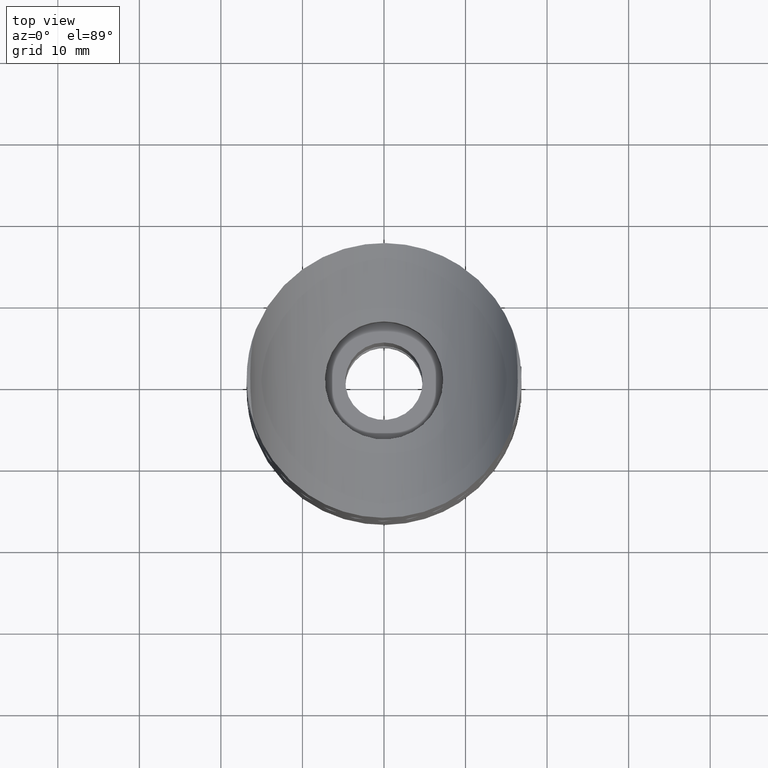
[diagram: clean part render]
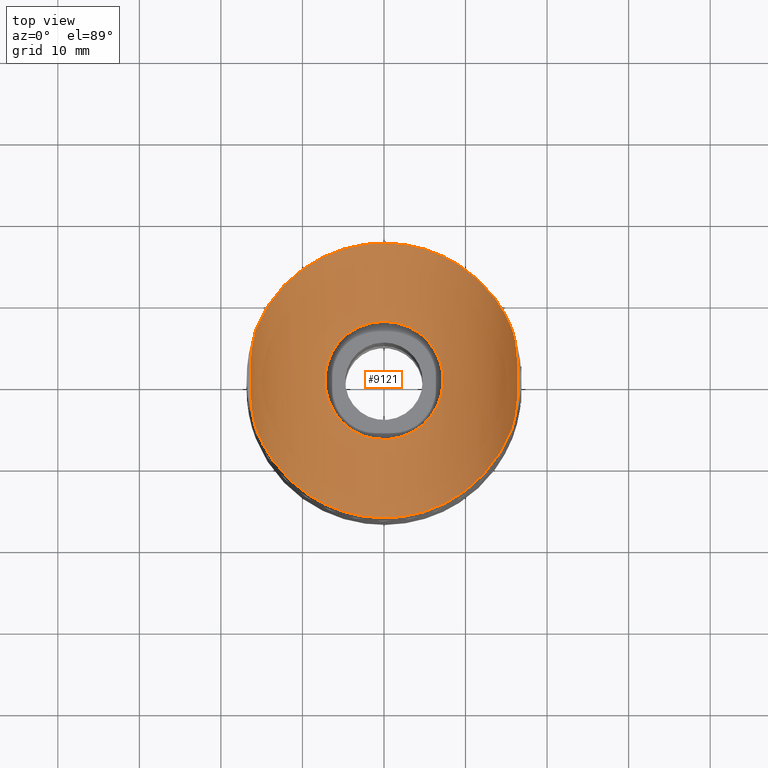
[diagram: same view with one face highlighted and labeled with its STEP entity id]
A machine part, top view. The second image highlights one B-rep face of the part: STEP entity #9121.
In plain terms, the highlighted cylindrical surface (partial cylindrical patch) has radius 16.85 mm, axis along (0, 1, 0).
Its self-contained STEP definition (entity closure, byte-faithful):
#15 = ORIENTED_EDGE ( 'NONE', *, *, #8905, .T. ) ;
#23 = CARTESIAN_POINT ( 'NONE',  ( -16.40141839170570393, -0.5535371552584260613, 37.98779848676359450 ) ) ;
#74 = CARTESIAN_POINT ( 'NONE',  ( 16.13624633560177557, 4.241177961827769849, 36.99627346810926554 ) ) ;
#178 = CARTESIAN_POINT ( 'NONE',  ( 15.96868809060993399, 5.184551421884949107, 36.46444688106459608 ) ) ;
#200 = ORIENTED_EDGE ( 'NONE', *, *, #5441, .T. ) ;
#221 = CARTESIAN_POINT ( 'NONE',  ( 16.20866886502654935, -3.744772510198584925, 37.24138836566785926 ) ) ;
#270 = CARTESIAN_POINT ( 'NONE',  ( 16.31087275655609403, 2.714783330825576879, 37.61726458673263807 ) ) ;
#299 = CARTESIAN_POINT ( 'NONE',  ( -6.597024996629188287, -3.016154368538872976, 26.34478903538650840 ) ) ;
#354 = CARTESIAN_POINT ( 'NONE',  ( 6.505347094623084914, 3.235870692881704258, 26.30512370645544706 ) ) ;
#372 = CARTESIAN_POINT ( 'NONE',  ( 5.748691130923704762, -4.423815701176767590, 26.01017554612027638 ) ) ;
#402 = CARTESIAN_POINT ( 'NONE',  ( -3.236524067846648034, 6.504761240615189344, 25.30781549788806828 ) ) ;
#446 = CARTESIAN_POINT ( 'NONE',  ( -0.4731811929526718030, -7.238568785239263725, 25.00492898829840627 ) ) ;
#490 = CARTESIAN_POINT ( 'NONE',  ( -9.163197432298227696, 23.14767939880414360, 18.70232060119585071 ) ) ;
#491 = CARTESIAN_POINT ( 'NONE',  ( 7.237684138109774956, 0.4863419437967108627, 26.63358971400849740 ) ) ;
#638 = VERTEX_POINT ( 'NONE', #2166 ) ;
#795 = EDGE_LOOP ( 'NONE', ( #7839, #200, #8832, #2468 ) ) ;
#917 = CARTESIAN_POINT ( 'NONE',  ( -15.73081969849494222, -6.038527271897003779, 35.81147272810301985 ) ) ;
#1027 = CARTESIAN_POINT ( 'NONE',  ( 3.235647069445152013, -6.505055102152138780, 25.30769353588152271 ) ) ;
#1136 = CARTESIAN_POINT ( 'NONE',  ( -16.38123230396242747, -1.377419223775963708, 37.90282915749347836 ) ) ;
#1240 = CARTESIAN_POINT ( 'NONE',  ( -16.13624633560179333, -4.241177961827717446, 36.99627346810930817 ) ) ;
#1423 = CARTESIAN_POINT ( 'NONE',  ( -1.206220008662642007, 7.152956514648704633, 25.04158154498464484 ) ) ;
#1463 = CARTESIAN_POINT ( 'NONE',  ( -7.201599023381042741, -0.9656620689726390649, 26.61613527486002795 ) ) ;
#1482 = CARTESIAN_POINT ( 'NONE',  ( 7.061034692050171202, -1.661628961916945757, 26.55075274866319290 ) ) ;
#1522 = CARTESIAN_POINT ( 'NONE',  ( -0.9536567279642784722, -7.191058151983810376, 25.02529029445553732 ) ) ;
#1575 = CARTESIAN_POINT ( 'NONE',  ( -3.647523231461745397, -6.283216967721338975, 25.39461716155379634 ) ) ;
#1622 = CARTESIAN_POINT ( 'NONE',  ( 3.227097637635072847, 6.509461846557853093, 25.30596129321795118 ) ) ;
#1804 = CARTESIAN_POINT ( 'NONE',  ( 15.73081969849499018, -6.038527271896840354, 35.81147272810315485 ) ) ;
#1997 = EDGE_CURVE ( 'NONE', #11243, #13985, #13587, .T. ) ;
#2122 = CARTESIAN_POINT ( 'NONE',  ( -15.85567318992861452, 5.621287671075532622, 36.14499305653968975 ) ) ;
#2166 = CARTESIAN_POINT ( 'NONE',  ( 7.250000000000000000, 0.000000000000000000, 26.63947732653476663 ) ) ;
#2316 = CARTESIAN_POINT ( 'NONE',  ( -16.38987835016731864, -1.104764067015558737, 37.93911602635104430 ) ) ;
#2322 = CARTESIAN_POINT ( 'NONE',  ( 16.23403106632356696, 3.489175320682800230, 37.33466334284318577 ) ) ;
#2426 = FACE_OUTER_BOUND ( 'NONE', #795, .T. ) ;
#2468 = ORIENTED_EDGE ( 'NONE', *, *, #12260, .T. ) ;
#2543 = CARTESIAN_POINT ( 'NONE',  ( 2.351928688558236225, 6.874276990241155794, 25.15905013672770352 ) ) ;
#2591 = CARTESIAN_POINT ( 'NONE',  ( -7.250343904083244695, 0.2281810962328670311, 26.63964124603318950 ) ) ;
#2645 = CARTESIAN_POINT ( 'NONE',  ( -6.154477086918445750, 3.839248637186977398, 26.16355981611150483 ) ) ;
#2686 = CARTESIAN_POINT ( 'NONE',  ( -7.249288605716508904, -0.4883933574990114712, 26.63913824537101860 ) ) ;
#2730 = CARTESIAN_POINT ( 'NONE',  ( -4.798364704034504769, 5.455251783317862646, 25.69388360925591996 ) ) ;
#2783 = VERTEX_POINT ( 'NONE', #10731 ) ;
#3270 = CARTESIAN_POINT ( 'NONE',  ( -16.01274988465693028, 4.945870757382262006, 36.60264272420874931 ) ) ;
#3364 = CARTESIAN_POINT ( 'NONE',  ( -16.39325967086365665, 1.096040323332309052, 37.95215670458372159 ) ) ;
#3410 = CARTESIAN_POINT ( 'NONE',  ( -16.14277968366689109, 4.237859510404688557, 37.01111241315620504 ) ) ;
#3419 = CARTESIAN_POINT ( 'NONE',  ( 15.85567318992863228, -5.621287671075488213, 36.14499305653972527 ) ) ;
#3448 = B_SPLINE_CURVE_WITH_KNOTS ( 'NONE', 3,
 ( #5857, #3708, #9175, #1482, #11350, #4796, #11407, #13612, #6964, #4745, #372, #12459, #13562, #8064, #9687, #14206, #1027, #3872, #9388, #13934, #11210, #9378, #13827, #13498, #446, #1522, #8152, #12385, #9206, #9161, #1575, #12445, #5794, #10432, #6951, #8002, #8049, #8100, #299, #4834, #9250, #1463, #2686, #2591, #3641, #11333, #12534, #11281, #11391, #4729, #10283, #12580, #2645, #10334, #5844, #4689, #6901, #2730, #13544, #7092, #402, #3743, #5902, #1423, #7042, #9099, #6998, #5988, #3787, #5941, #2543, #1622, #9301, #10393, #11481, #10239, #3695, #4884, #13694, #4780, #354, #13655, #12485, #13597, #11440, #491, #8189, #11719 ),
 .UNSPECIFIED., .T., .F.,
 ( 4, 2, 2, 2, 2, 2, 2, 2, 2, 2, 2, 2, 2, 2, 2, 2, 2, 2, 2, 2, 2, 2, 2, 2, 2, 2, 2, 2, 2, 2, 2, 2, 2, 2, 2, 2, 2, 2, 2, 2, 2, 2, 2, 4 ),
 ( 0.000000000000000000, 0.001433644577313991945, 0.002150466865970988677, 0.002867289154627985191, 0.004300933731941979955, 0.005017756020598978205, 0.005734578309255978189, 0.007168222886569977290, 0.008601867463883977258, 0.009318689752540977242, 0.01003551204119797549, 0.01146915661851197546, 0.01218597890716897718, 0.01290280119582597716, 0.01433644577313997887, 0.01577009035045398230, 0.01720373492776798574, 0.01863737950508198571, 0.01935420179373898569, 0.02007102408239598915, 0.02150466865970999258, 0.02293831323702399255, 0.02365513552568099254, 0.02437195781433799599, 0.02580560239165199596, 0.02652242468030899594, 0.02723924696896599940, 0.02795606925762299938, 0.02867289154627999936, 0.03010653612359400627, 0.03154018070090801318, 0.03297382527822202009, 0.03369064756687902007, 0.03440746985553602005, 0.03584111443285002002, 0.03727475901016401999, 0.03870840358747802690, 0.04014204816479202687, 0.04085887045344903379, 0.04157569274210603377, 0.04300933731942004068, 0.04444298189673404759, 0.04515980418539104757, 0.04587662647404804755 ),
 .UNSPECIFIED. ) ;
#3463 = CARTESIAN_POINT ( 'NONE',  ( -15.86311505572658298, -5.625520625989302026, 36.15611212738907199 ) ) ;
#3519 = CARTESIAN_POINT ( 'NONE',  ( 15.96386898178366742, -5.177536327584455478, 36.45515397224382781 ) ) ;
#3641 = CARTESIAN_POINT ( 'NONE',  ( -7.238922090878896931, 0.4674521546085577128, 26.63417985456497306 ) ) ;
#3695 = CARTESIAN_POINT ( 'NONE',  ( 5.451857114951206285, 4.784850722138375367, 25.90557452647156822 ) ) ;
#3708 = CARTESIAN_POINT ( 'NONE',  ( 7.249999999999997335, -0.4853044915254276503, 26.63947732653477019 ) ) ;
#3743 = CARTESIAN_POINT ( 'NONE',  ( -2.362376490325218015, 6.870675669620782244, 25.16053825129096566 ) ) ;
#3787 = CARTESIAN_POINT ( 'NONE',  ( 0.9488585482520990322, 7.203876826102688646, 25.02001323252149589 ) ) ;
#3872 = CARTESIAN_POINT ( 'NONE',  ( 2.582786677651925267, -6.778449412495077375, 25.19766032188119098 ) ) ;
#3875 = CARTESIAN_POINT ( 'NONE',  ( -15.73081969849497774, 6.038527271896884763, 35.81147272810311932 ) ) ;
#4469 = CARTESIAN_POINT ( 'NONE',  ( 15.86311505572657410, 5.625520625989348211, 36.15611212738902935 ) ) ;
#4555 = CARTESIAN_POINT ( 'NONE',  ( -15.96868809060994110, -5.184551421884894928, 36.46444688106462451 ) ) ;
#4689 = CARTESIAN_POINT ( 'NONE',  ( -5.456315597336280021, 4.779773658194085506, 25.90710032310409616 ) ) ;
#4729 = CARTESIAN_POINT ( 'NONE',  ( -6.602263208937939609, 3.004854884108334456, 26.34701551272308961 ) ) ;
#4745 = CARTESIAN_POINT ( 'NONE',  ( 5.890442141657528552, -4.233289882853304320, 26.06250676569495539 ) ) ;
#4780 = CARTESIAN_POINT ( 'NONE',  ( 6.280362781856493548, 3.652164045557528382, 26.21166793982108345 ) ) ;
#4796 = CARTESIAN_POINT ( 'NONE',  ( 6.862414628211291223, -2.350987257090765947, 26.46053341069578124 ) ) ;
#4834 = CARTESIAN_POINT ( 'NONE',  ( -6.869696446962260339, -2.364629918321242474, 26.46270023103867430 ) ) ;
#4884 = CARTESIAN_POINT ( 'NONE',  ( 5.749804130066613617, 4.422363044895918804, 26.01058075090455191 ) ) ;
#5207 = CARTESIAN_POINT ( 'NONE',  ( -9.163197432298050060, -23.14767939880428571, 18.70232060119571571 ) ) ;
#5311 = CYLINDRICAL_SURFACE ( 'NONE', #5709, 16.85000000000000497 ) ;
#5441 = EDGE_CURVE ( 'NONE', #10939, #13985, #10349, .T. ) ;
#5519 = CARTESIAN_POINT ( 'NONE',  ( -16.31062374466074516, 2.717289760328442494, 37.61634901860210078 ) ) ;
#5579 = CARTESIAN_POINT ( 'NONE',  ( 16.34671092180303020, -2.177982997195887283, 37.76133432144520441 ) ) ;
#5608 = CARTESIAN_POINT ( 'NONE',  ( 15.73081969849499018, -6.038527271896840354, 35.81147272810315485 ) ) ;
#5611 = CARTESIAN_POINT ( 'NONE',  ( -16.40426520276194466, -0.2756780710698192305, 37.99998920032988536 ) ) ;
#5709 = AXIS2_PLACEMENT_3D ( 'NONE', #14032, #8480, #9774 ) ;
#5794 = CARTESIAN_POINT ( 'NONE',  ( -4.796089520777946369, -5.457012219152879595, 25.69324742014727292 ) ) ;
#5844 = CARTESIAN_POINT ( 'NONE',  ( -5.754116119224438108, 4.416759423806409401, 26.01214731436788341 ) ) ;
#5857 = CARTESIAN_POINT ( 'NONE',  ( 7.249999999999999112, -1.897353801849632760E-16, 26.63947732653477019 ) ) ;
#5902 = CARTESIAN_POINT ( 'NONE',  ( -1.909735483059623373, 7.010308468516696756, 25.10195530643837358 ) ) ;
#5941 = CARTESIAN_POINT ( 'NONE',  ( 1.896853463475621115, 7.014137210544926226, 25.10035122528852369 ) ) ;
#5988 = CARTESIAN_POINT ( 'NONE',  ( 0.4712565622534022336, 7.250465984549373744, 24.99979950227583103 ) ) ;
#6574 = CARTESIAN_POINT ( 'NONE',  ( -16.20421094295869224, -3.745248186039250360, 37.22824116101894987 ) ) ;
#6615 = CARTESIAN_POINT ( 'NONE',  ( -16.34617337435092210, -2.186723760485111523, 37.75917687489127417 ) ) ;
#6675 = CARTESIAN_POINT ( 'NONE',  ( 16.20421094295868869, 3.745248186039304983, 37.22824116101892145 ) ) ;
#6720 = CARTESIAN_POINT ( 'NONE',  ( -16.20866886502653870, 3.744772510198639104, 37.24138836566783795 ) ) ;
#6901 = CARTESIAN_POINT ( 'NONE',  ( -5.297207865788581493, 4.955550704987970789, 25.85335772755182049 ) ) ;
#6951 = CARTESIAN_POINT ( 'NONE',  ( -5.754487810619588473, -4.435106019776057451, 26.01057218544510974 ) ) ;
#6964 = CARTESIAN_POINT ( 'NONE',  ( 6.284216989755231353, -3.646001131596604772, 26.21318057226976705 ) ) ;
#6998 = CARTESIAN_POINT ( 'NONE',  ( -0.2463010454514845682, 7.249761770579300268, 25.00010250223306940 ) ) ;
#7042 = CARTESIAN_POINT ( 'NONE',  ( -0.9659986221736308609, 7.189405491579162089, 25.02599706087776354 ) ) ;
#7092 = CARTESIAN_POINT ( 'NONE',  ( -3.659509500026476125, 6.276188967057912294, 25.39730413224381422 ) ) ;
#7133 = CARTESIAN_POINT ( 'NONE',  ( 15.73081969849492801, 6.038527271897049076, 35.81147272810297721 ) ) ;
#7640 = CARTESIAN_POINT ( 'NONE',  ( 15.73081969849499018, -6.038527271896840354, 35.81147272810315485 ) ) ;
#7720 = CARTESIAN_POINT ( 'NONE',  ( -16.31087275655609758, -2.714783330825518703, 37.61726458673266649 ) ) ;
#7777 = CARTESIAN_POINT ( 'NONE',  ( -15.73081969849494222, -6.038527271897003779, 35.81147272810301985 ) ) ;
#7785 = CARTESIAN_POINT ( 'NONE',  ( 16.14277968366690530, -4.237859510404637042, 37.01111241315622635 ) ) ;
#7817 = CARTESIAN_POINT ( 'NONE',  ( -16.40427280154960243, 0.5502477355468575748, 38.00002157761478827 ) ) ;
#7839 = ORIENTED_EDGE ( 'NONE', *, *, #10618, .F. ) ;
#7865 = CARTESIAN_POINT ( 'NONE',  ( -16.23403106632357762, -3.489175320682742942, 37.33466334284320709 ) ) ;
#7931 = CARTESIAN_POINT ( 'NONE',  ( 16.39325967086365665, -1.096040323332247102, 37.95215670458372159 ) ) ;
#8002 = CARTESIAN_POINT ( 'NONE',  ( -6.148551095359934493, -3.848800887296454309, 26.16122709414422687 ) ) ;
#8049 = CARTESIAN_POINT ( 'NONE',  ( -6.271749419596712727, -3.644646323103855945, 26.21023352558152553 ) ) ;
#8064 = CARTESIAN_POINT ( 'NONE',  ( 4.798716551207491854, -5.454592940747858165, 25.69404991863388688 ) ) ;
#8100 = CARTESIAN_POINT ( 'NONE',  ( -6.495672709179130422, -3.228703092257263041, 26.30190133129517349 ) ) ;
#8152 = CARTESIAN_POINT ( 'NONE',  ( -1.190670664119219735, -7.155537656130248614, 25.04048140047463278 ) ) ;
#8189 = CARTESIAN_POINT ( 'NONE',  ( 7.250000000000000000, 0.2426522457627152685, 26.63947732653477019 ) ) ;
#8252 = FACE_BOUND ( 'NONE', #11303, .T. ) ;
#8480 = DIRECTION ( 'NONE',  ( -0.000000000000000000, 1.000000000000000000, -0.000000000000000000 ) ) ;
#8593 = CARTESIAN_POINT ( 'NONE',  ( -15.79625609340232906, 5.834244472057916298, 35.98193947995463304 ) ) ;
#8832 = ORIENTED_EDGE ( 'NONE', *, *, #1997, .F. ) ;
#8874 = CARTESIAN_POINT ( 'NONE',  ( 16.09802337704649133, 4.482162362223698793, 36.87041027944264471 ) ) ;
#8905 = EDGE_CURVE ( 'NONE', #638, #638, #3448, .T. ) ;
#8982 = CARTESIAN_POINT ( 'NONE',  ( 16.40427280154960599, -0.5502477355467935149, 38.00002157761480959 ) ) ;
#9069 = CARTESIAN_POINT ( 'NONE',  ( 16.38987835016732220, 1.104764067015622686, 37.93911602635103009 ) ) ;
#9099 = CARTESIAN_POINT ( 'NONE',  ( -0.4859107974962014187, 7.237720314938023591, 25.00529403846681831 ) ) ;
#9121 = ADVANCED_FACE ( 'NONE', ( #8252, #2426 ), #5311, .F. ) ;
#9161 = CARTESIAN_POINT ( 'NONE',  ( -3.232678530711865061, -6.507013500803556560, 25.30694114652219184 ) ) ;
#9175 = CARTESIAN_POINT ( 'NONE',  ( 7.201777549590140381, -0.9611384103698915604, 26.61623455459185550 ) ) ;
#9206 = CARTESIAN_POINT ( 'NONE',  ( -2.349490466729689420, -6.875414876886445370, 25.15859798401278624 ) ) ;
#9250 = CARTESIAN_POINT ( 'NONE',  ( -7.009997843411292173, -1.911926243447793050, 26.52702400991258003 ) ) ;
#9300 = CARTESIAN_POINT ( 'NONE',  ( 9.163197432297996770, 23.14767939880423597, 18.70232060119576545 ) ) ;
#9301 = CARTESIAN_POINT ( 'NONE',  ( 3.650371492537184626, 6.281606876973372167, 25.39523944315438087 ) ) ;
#9378 = CARTESIAN_POINT ( 'NONE',  ( 0.9636397916963014287, -7.201607639733266453, 25.02098335817765573 ) ) ;
#9388 = CARTESIAN_POINT ( 'NONE',  ( 2.359795026673984886, -6.859380087639546097, 25.16446733679540060 ) ) ;
#9687 = CARTESIAN_POINT ( 'NONE',  ( 4.435496818888692516, -5.754387200028169502, 25.58922731733832379 ) ) ;
#9764 = CARTESIAN_POINT ( 'NONE',  ( 15.79625609340233972, -5.834244472057871000, 35.98193947995466146 ) ) ;
#9774 = DIRECTION ( 'NONE',  ( 0.000000000000000000, 0.000000000000000000, 1.000000000000000000 ) ) ;
#9954 = CARTESIAN_POINT ( 'NONE',  ( -16.34671092180302665, 2.177982997195949011, 37.76133432144517599 ) ) ;
#9978 = CARTESIAN_POINT ( 'NONE',  ( 15.73081969849492801, 6.038527271897049076, 35.81147272810297721 ) ) ;
#10005 = CARTESIAN_POINT ( 'NONE',  ( -16.09802337704650554, -4.482162362223640173, 36.87041027944269445 ) ) ;
#10239 = CARTESIAN_POINT ( 'NONE',  ( 5.292577952168032951, 4.960501831489013469, 25.85182253006622588 ) ) ;
#10283 = CARTESIAN_POINT ( 'NONE',  ( -6.499399634962044203, 3.221213833716233044, 26.30345968075528518 ) ) ;
#10334 = CARTESIAN_POINT ( 'NONE',  ( -5.893691763476980761, 4.228689597105682374, 26.06372775943479780 ) ) ;
#10349 = B_SPLINE_CURVE_WITH_KNOTS ( 'NONE', 3,
 ( #7640, #9764, #3419, #3519, #13378, #7785, #221, #12171, #5579, #7931, #8982, #12307, #13280, #9069, #11079, #11119, #270, #2322, #6675, #74, #8874, #178, #4469, #13477 ),
 .UNSPECIFIED., .F., .F.,
 ( 4, 2, 2, 2, 2, 2, 2, 2, 2, 2, 2, 4 ),
 ( 0.001766015158676464015, 0.002587557526181802001, 0.003409099893687139553, 0.005052184628697817259, 0.006695269363708492363, 0.008338354098719167468, 0.009159896466224505887, 0.009981438833729844307, 0.01162452356874052461, 0.01244606593624586477, 0.01326760830375120319, 0.01491069303876189737 ),
 .UNSPECIFIED. ) ;
#10393 = CARTESIAN_POINT ( 'NONE',  ( 4.431519699493720488, 5.757206800468992469, 25.58820458345236659 ) ) ;
#10421 =( BOUNDED_CURVE ( )  B_SPLINE_CURVE ( 3, ( #1804, #12907, #5207, #917 ),
 .UNSPECIFIED., .F., .F. ) 
 B_SPLINE_CURVE_WITH_KNOTS ( ( 4, 4 ),
 ( 5.078909860151924249, 7.487460754207239333 ),
 .UNSPECIFIED. ) 
 CURVE ( )  GEOMETRIC_REPRESENTATION_ITEM ( )  RATIONAL_B_SPLINE_CURVE ( ( 1.000000000000000000, 0.5722463806883051340, 0.5722463806883051340, 1.000000000000000000 ) ) 
 REPRESENTATION_ITEM ( '' )  );
#10432 = CARTESIAN_POINT ( 'NONE',  ( -5.457786858323809831, -4.795207989275104055, 25.90460282002979753 ) ) ;
#10618 = EDGE_CURVE ( 'NONE', #10939, #2783, #10421, .T. ) ;
#10731 = CARTESIAN_POINT ( 'NONE',  ( -15.73081969849494222, -6.038527271897003779, 35.81147272810301985 ) ) ;
#10939 = VERTEX_POINT ( 'NONE', #5608 ) ;
#11068 = CARTESIAN_POINT ( 'NONE',  ( -15.96386898178366032, 5.177536327584501663, 36.45515397224378518 ) ) ;
#11079 = CARTESIAN_POINT ( 'NONE',  ( 16.38123230396242391, 1.377419223776026991, 37.90282915749345705 ) ) ;
#11119 = CARTESIAN_POINT ( 'NONE',  ( 16.34617337435091855, 2.186723760485173695, 37.75917687489123864 ) ) ;
#11210 = CARTESIAN_POINT ( 'NONE',  ( 1.667678265546689298, -7.059650328721987833, 25.08107561895093340 ) ) ;
#11243 = VERTEX_POINT ( 'NONE', #13803 ) ;
#11281 = CARTESIAN_POINT ( 'NONE',  ( -7.015097046224484600, 1.892247061992780477, 26.52937117734975558 ) ) ;
#11303 = EDGE_LOOP ( 'NONE', ( #15 ) ) ;
#11333 = CARTESIAN_POINT ( 'NONE',  ( -7.191940080276157055, 0.9468381257532870743, 26.61191699662458987 ) ) ;
#11350 = CARTESIAN_POINT ( 'NONE',  ( 7.002628067825622082, -1.892901412169233577, 26.52382576842804696 ) ) ;
#11391 = CARTESIAN_POINT ( 'NONE',  ( -6.876300369115806888, 2.346299778860053475, 26.46563705559853830 ) ) ;
#11407 = CARTESIAN_POINT ( 'NONE',  ( 6.780822339225336393, -2.576636541328811258, 26.42427963177766870 ) ) ;
#11440 = CARTESIAN_POINT ( 'NONE',  ( 7.189398415431848655, 0.9659972016149285245, 26.61071641779510699 ) ) ;
#11481 = CARTESIAN_POINT ( 'NONE',  ( 4.792961786844760042, 5.460023489855147183, 25.69226896291028339 ) ) ;
#11719 = CARTESIAN_POINT ( 'NONE',  ( 7.249999999999999112, -1.897353801849632760E-16, 26.63947732653477019 ) ) ;
#12171 = CARTESIAN_POINT ( 'NONE',  ( 16.31062374466075227, -2.717289760328384318, 37.61634901860210789 ) ) ;
#12260 = EDGE_CURVE ( 'NONE', #11243, #2783, #13687, .T. ) ;
#12307 = CARTESIAN_POINT ( 'NONE',  ( 16.40426520276194822, 0.2756780710698837344, 37.99998920032987115 ) ) ;
#12385 = CARTESIAN_POINT ( 'NONE',  ( -1.892428574287336129, -7.014903934195332091, 25.10002499094538564 ) ) ;
#12445 = CARTESIAN_POINT ( 'NONE',  ( -4.427968128431337469, -5.759890575445921534, 25.58724659421169179 ) ) ;
#12459 = CARTESIAN_POINT ( 'NONE',  ( 5.450504586210800362, -4.786396852793753709, 25.90511090649477666 ) ) ;
#12485 = CARTESIAN_POINT ( 'NONE',  ( 7.012290045199202737, 1.901714966943133467, 26.52808509678868631 ) ) ;
#12534 = CARTESIAN_POINT ( 'NONE',  ( -7.156127446319824337, 1.187333714639698057, 26.59499988546803806 ) ) ;
#12580 = CARTESIAN_POINT ( 'NONE',  ( -6.275687458722881473, 3.637878653542188978, 26.21181409391502726 ) ) ;
#12907 = CARTESIAN_POINT ( 'NONE',  ( 9.163197432298263223, -23.14767939880420400, 18.70232060119580453 ) ) ;
#13079 = CARTESIAN_POINT ( 'NONE',  ( -15.73081969849497774, 6.038527271896884763, 35.81147272810311932 ) ) ;
#13280 = CARTESIAN_POINT ( 'NONE',  ( 16.40141839170570037, 0.5535371552584905652, 37.98779848676358029 ) ) ;
#13378 = CARTESIAN_POINT ( 'NONE',  ( 16.01274988465695159, -4.945870757382214933, 36.60264272420879195 ) ) ;
#13477 = CARTESIAN_POINT ( 'NONE',  ( 15.73081969849492801, 6.038527271897049076, 35.81147272810297721 ) ) ;
#13498 = CARTESIAN_POINT ( 'NONE',  ( -0.2305305415976679484, -7.250303364233751324, 24.99986947245167457 ) ) ;
#13544 = CARTESIAN_POINT ( 'NONE',  ( -4.437796910308049014, 5.752261843298151156, 25.58995173191280514 ) ) ;
#13562 = CARTESIAN_POINT ( 'NONE',  ( 5.293479903980651713, -4.959436629111745987, 25.85213931806007537 ) ) ;
#13587 =( BOUNDED_CURVE ( )  B_SPLINE_CURVE ( 3, ( #3875, #490, #9300, #7133 ),
 .UNSPECIFIED., .F., .T. ) 
 B_SPLINE_CURVE_WITH_KNOTS ( ( 4, 4 ),
 ( 5.078909860151926914, 7.487460754207235780 ),
 .UNSPECIFIED. ) 
 CURVE ( )  GEOMETRIC_REPRESENTATION_ITEM ( )  RATIONAL_B_SPLINE_CURVE ( ( 1.000000000000000000, 0.5722463806883070214, 0.5722463806883070214, 1.000000000000000000 ) ) 
 REPRESENTATION_ITEM ( '' )  );
#13597 = CARTESIAN_POINT ( 'NONE',  ( 7.153553893937989905, 1.202382867433853475, 26.59379261804110328 ) ) ;
#13612 = CARTESIAN_POINT ( 'NONE',  ( 6.506850746331272362, -3.232309269541075558, 26.30577292806510670 ) ) ;
#13655 = CARTESIAN_POINT ( 'NONE',  ( 6.873482217415704199, 2.354918718224010554, 26.46435857658203972 ) ) ;
#13687 = B_SPLINE_CURVE_WITH_KNOTS ( 'NONE', 3,
 ( #13079, #8593, #2122, #11068, #3270, #3410, #6720, #5519, #9954, #3364, #7817, #5611, #23, #2316, #1136, #6615, #7720, #7865, #6574, #1240, #10005, #4555, #3463, #7777 ),
 .UNSPECIFIED., .F., .F.,
 ( 4, 2, 2, 2, 2, 2, 2, 2, 2, 2, 2, 4 ),
 ( 0.001766015158676397228, 0.002587557526181729576, 0.003409099893687062358, 0.005052184628697741799, 0.006695269363708421240, 0.008338354098719101548, 0.009159896466224439968, 0.009981438833729780122, 0.01162452356874046390, 0.01244606593624580405, 0.01326760830375114421, 0.01491069303876182799 ),
 .UNSPECIFIED. ) ;
#13694 = CARTESIAN_POINT ( 'NONE',  ( 5.889366731775130148, 4.234684075643444068, 26.06211442045840698 ) ) ;
#13803 = CARTESIAN_POINT ( 'NONE',  ( -15.73081969849497774, 6.038527271896884763, 35.81147272810311932 ) ) ;
#13827 = CARTESIAN_POINT ( 'NONE',  ( 0.4891137974550303080, -7.249375180610591940, 25.00026883902182817 ) ) ;
#13934 = CARTESIAN_POINT ( 'NONE',  ( 1.902486007410979729, -7.000019624702962240, 25.10615994419476493 ) ) ;
#13985 = VERTEX_POINT ( 'NONE', #9978 ) ;
#14032 = CARTESIAN_POINT ( 'NONE',  ( 0.000000000000000000, -16.85000000000000142, 41.85000000000000142 ) ) ;
#14206 = CARTESIAN_POINT ( 'NONE',  ( 3.649548190561950456, -6.282308658684782721, 25.39499595040056334 ) ) ;